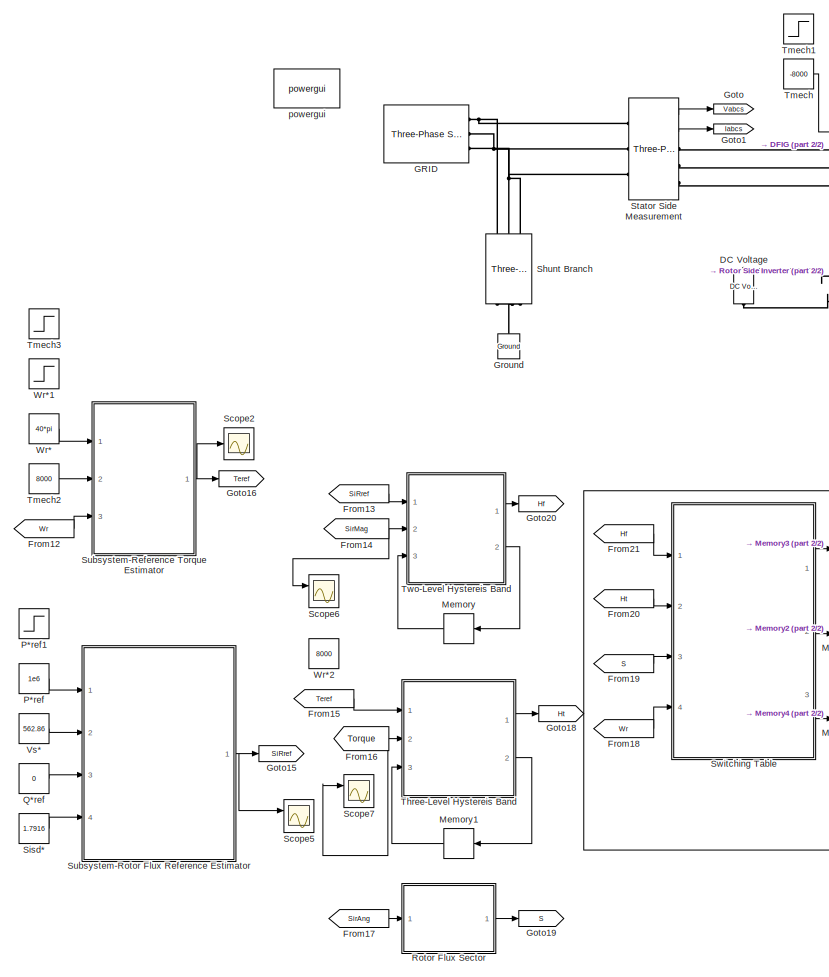
[diagram: root canvas - part 1/2, left side, full height]
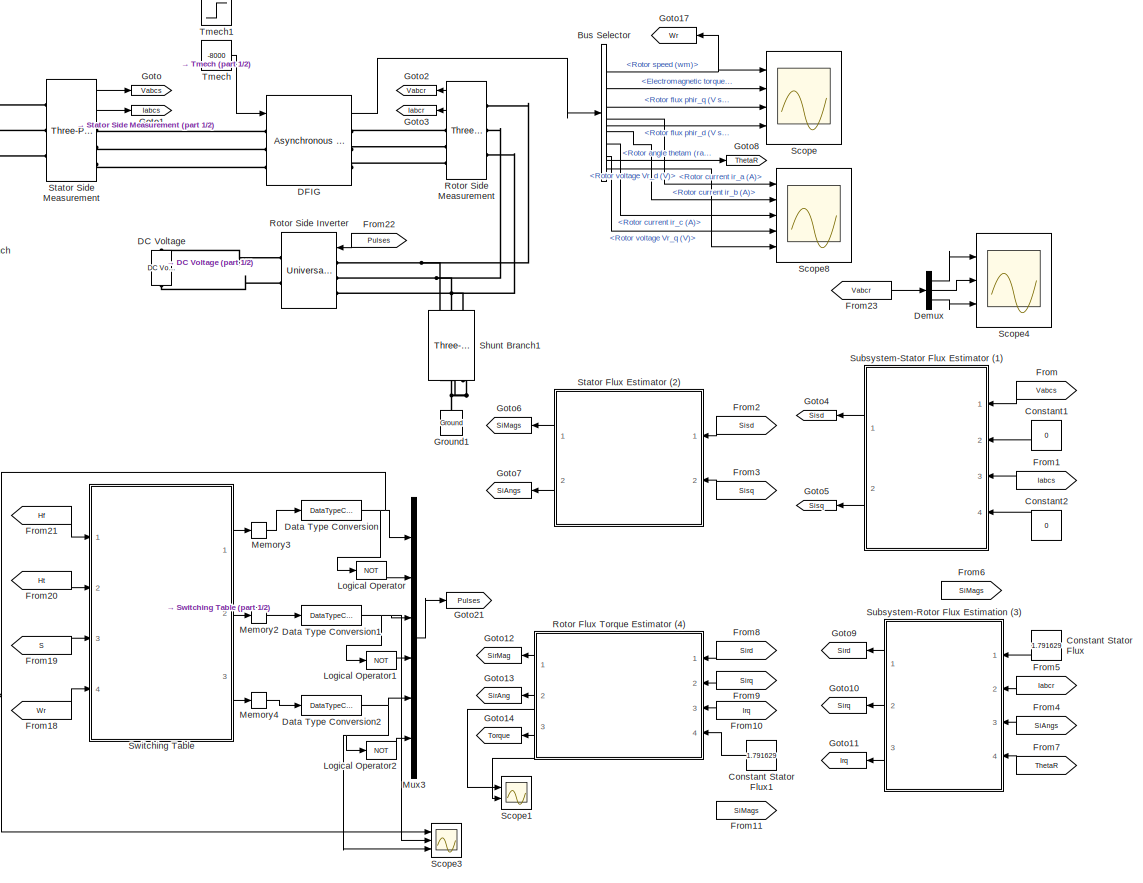
[diagram: root canvas - part 2/2, right side, full height]
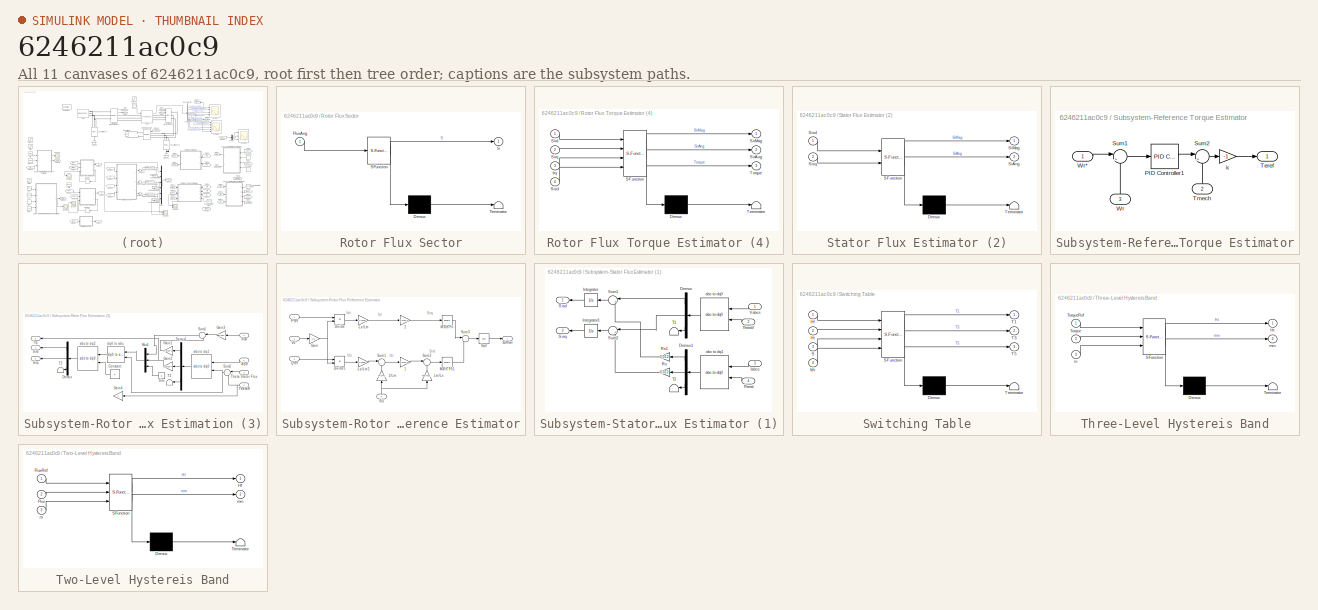
[diagram: thumbnail index - all 11 canvases of the model, root first then tree order]
MODEL slx_6246211ac0c9
KIND model
BLOCK [BusSelector] Bus Selector
  OutputSignals = Mechanical.Rotor speed (wm),Mechanical.Electromagnetic torque Te (N*m),Rotor measurements.Rotor flux phir_q (V s),Rotor measurements.Rotor flux phir_d (V s),Mechanical.Rotor angle thetam (rad),Rotor measurements.Rotor current ir_a (A),Rotor measurements.Rotor current ir_b (A),Rotor measurements.Rotor current ir_c (A),Rotor measurements.Rotor voltage Vr_q (V),Rotor measurements.Rotor voltage Vr_d (...<+2ch>
  Ports = [1, 10]
BLOCK [Constant] Constant Stator Flux
  Value = 1.791629
BLOCK [Constant] Constant Stator Flux1
  Value = 1.791629
BLOCK [Constant] Constant1
  Value = 0
BLOCK [Constant] Constant2
  Value = 0
BLOCK [Reference] DC Voltage  REF=powerlib/Electrical
Sources/DC Voltage Source
  Amplitude = 1200
  Measurements = None
  Ports = [0, 0, 0, 0, 0, 1, 1]
  SourceBlock = powerlib/Electrical\nSources/DC Voltage Source
  SourceType = DC Voltage Source
BLOCK [Reference] DFIG  REF=powerlib/Machines/Asynchronous Machine
SI Units
  AttributesFormatString = \n
  Cage1 = [ 0.022 0.226/377]
  Cage2 = [ 0.022 0.226/377]
  InitialConditions = [1 0 0 0 0 0 0 0]
  IterativeModel = Trapezoidal non iterative
  Lm = 0.0135
  LoadFlowParameters = 1492000
  MeasurementBus = off
  Mechanical = [1000 30 2]
  MechanicalLoad = Torque Tm
  NominalParameters = [1.5e+06 690 50]
  Pmec = 0
  PolePairs = 2
  Ports = [1, 1, 0, 0, 0, 3, 3]
  PresetModel = No
  ReferenceFrame = Rotor
  Rotor = [0.021 0.0136]
  RotorType = Wound
  Saturation = [14.03593122, 27.81365428, 53.79336849, 72.68890987, 97.98006896, 148.6815601, 215.7428561, 302.9841135, 420.4778367 ; 230, 322, 414, 460, 506, 552, 598, 644, 690]
  ShowDetailedParameters = on
  SimulateSaturation = off
  SourceBlock = powerlib/Machines/Asynchronous Machine\nSI Units
  SourceType = Asynchronous Machine
  Stator = [0.012 0.0137]
  TsBlock = -1
  TsPowergui = 0
  Units = SI
BLOCK [DataTypeConversion] Data Type Conversion
  OutDataTypeStr = boolean
  RndMeth = Floor
  SaturateOnIntegerOverflow = off
BLOCK [DataTypeConversion] Data Type Conversion1
  OutDataTypeStr = boolean
  RndMeth = Floor
  SaturateOnIntegerOverflow = off
BLOCK [DataTypeConversion] Data Type Conversion2
  OutDataTypeStr = boolean
  RndMeth = Floor
  SaturateOnIntegerOverflow = off
BLOCK [Demux] Demux
  DisplayOption = bar
  Outputs = 3
  Ports = [1, 3]
BLOCK [From] From
  GotoTag = Vabcs
  TagVisibility = global
BLOCK [From] From1
  GotoTag = Iabcs
  TagVisibility = global
BLOCK [From] From10
  GotoTag = Irq
  TagVisibility = global
BLOCK [From] From11
  GotoTag = SiMags
  TagVisibility = global
BLOCK [From] From12
  GotoTag = Wr
  TagVisibility = global
BLOCK [From] From13
  GotoTag = SiRref
  TagVisibility = global
BLOCK [From] From14
  GotoTag = SirMag
  TagVisibility = global
BLOCK [From] From15
  GotoTag = Teref
  TagVisibility = global
BLOCK [From] From16
  GotoTag = Torque
  TagVisibility = global
BLOCK [From] From17
  GotoTag = SirAng
  TagVisibility = global
BLOCK [From] From18
  GotoTag = Wr
  TagVisibility = global
BLOCK [From] From19
  GotoTag = S
  TagVisibility = global
BLOCK [From] From2
  GotoTag = Sisd
  TagVisibility = global
BLOCK [From] From20
  GotoTag = Ht
  TagVisibility = global
BLOCK [From] From21
  GotoTag = Hf
  TagVisibility = global
BLOCK [From] From22
  GotoTag = Pulses
  TagVisibility = global
BLOCK [From] From23
  GotoTag = Vabcr
  TagVisibility = global
BLOCK [From] From3
  GotoTag = Sisq
  TagVisibility = global
BLOCK [From] From4
  GotoTag = SiAngs
  TagVisibility = global
BLOCK [From] From5
  GotoTag = Iabcr
  TagVisibility = global
BLOCK [From] From6
  GotoTag = SiMags
  TagVisibility = global
BLOCK [From] From7
  GotoTag = ThetaR
  TagVisibility = global
BLOCK [From] From8
  GotoTag = Sird
  TagVisibility = global
BLOCK [From] From9
  GotoTag = Sirq
  TagVisibility = global
BLOCK [Reference] GRID  REF=powerlib/Electrical
Sources/Three-Phase Source
  BaseVoltage = 398
  BusType = swing
  Frequency = 50
  Inductance = 0
  InternalConnection = Yg
  PhaseAngle = 0
  Ports = [0, 0, 0, 0, 0, 0, 3]
  Pref = 0
  Qmax = inf
  Qmin = -inf
  Qref = 0
  Resistance = 0
  ShortCircuitLevel = 100e6
  SourceBlock = powerlib/Electrical\nSources/Three-Phase Source
  SourceType = Three-Phase Source
  SpecifyImpedance = off
  Voltage = 25e3
  XRratio = 7
BLOCK [Goto] Goto
  GotoTag = Vabcs
  TagVisibility = global
BLOCK [Goto] Goto1
  GotoTag = Iabcs
  TagVisibility = global
BLOCK [Goto] Goto10
  GotoTag = Sirq
  TagVisibility = global
BLOCK [Goto] Goto11
  GotoTag = Irq
  TagVisibility = global
BLOCK [Goto] Goto12
  GotoTag = SirMag
  TagVisibility = global
BLOCK [Goto] Goto13
  GotoTag = SirAng
  TagVisibility = global
BLOCK [Goto] Goto14
  GotoTag = Torque
  TagVisibility = global
BLOCK [Goto] Goto15
  GotoTag = SiRref
  TagVisibility = global
BLOCK [Goto] Goto16
  GotoTag = Teref
  TagVisibility = global
BLOCK [Goto] Goto17
  GotoTag = Wr
  TagVisibility = global
BLOCK [Goto] Goto18
  GotoTag = Ht
  TagVisibility = global
BLOCK [Goto] Goto19
  GotoTag = S
  TagVisibility = global
BLOCK [Goto] Goto2
  GotoTag = Vabcr
  TagVisibility = global
BLOCK [Goto] Goto20
  GotoTag = Hf
  TagVisibility = global
BLOCK [Goto] Goto21
  GotoTag = Pulses
  TagVisibility = global
BLOCK [Goto] Goto3
  GotoTag = Iabcr
  TagVisibility = global
BLOCK [Goto] Goto4
  GotoTag = Sisd
  TagVisibility = global
BLOCK [Goto] Goto5
  GotoTag = Sisq
  TagVisibility = global
BLOCK [Goto] Goto6
  GotoTag = SiMags
  TagVisibility = global
BLOCK [Goto] Goto7
  GotoTag = SiAngs
  TagVisibility = global
BLOCK [Goto] Goto8
  GotoTag = ThetaR
  TagVisibility = global
BLOCK [Goto] Goto9
  GotoTag = Sird
  TagVisibility = global
BLOCK [Reference] Ground  REF=powerlib/Elements/Ground
  LConnTagsString = a
  Ports = [0, 0, 0, 0, 0, 1]
  SourceBlock = powerlib/Elements/Ground
  SourceType = Ground
BLOCK [Reference] Ground1  REF=powerlib/Elements/Ground
  LConnTagsString = a
  Ports = [0, 0, 0, 0, 0, 1]
  SourceBlock = powerlib/Elements/Ground
  SourceType = Ground
BLOCK [Logic] Logical Operator
  AllPortsSameDT = off
  Operator = NOT
  OutDataTypeStr = boolean
  Ports = [1, 1]
BLOCK [Logic] Logical Operator1
  AllPortsSameDT = off
  Operator = NOT
  OutDataTypeStr = boolean
  Ports = [1, 1]
BLOCK [Logic] Logical Operator2
  AllPortsSameDT = off
  Operator = NOT
  OutDataTypeStr = boolean
  Ports = [1, 1]
BLOCK [Memory] Memory
  X0 = 1
BLOCK [Memory] Memory1
  X0 = 1
BLOCK [Memory] Memory2
  X0 = 1
BLOCK [Memory] Memory3
BLOCK [Memory] Memory4
BLOCK [Mux] Mux3
  DisplayOption = bar
  Inputs = 6
  Ports = [6, 1]
BLOCK [Constant] P*ref
  Value = 1e6
BLOCK [Step] P*ref1
  After = 1e6
  SampleTime = 0
  Time = 0.5
BLOCK [Constant] Q*ref
  Value = 0
BLOCK [SubSystem] Rotor Flux Sector
  ErrorFcn = Stateflow.Translate.translate
  PermitHierarchicalResolution = ExplicitOnly
  Ports = [1, 1]
  RequestExecContextInheritance = off
  SFBlockType = MATLAB Function
  TreatAsAtomicUnit = on
BLOCK [Demux] Rotor Flux Sector/ Demux 
  Outputs = 1
  Ports = [1, 1]
BLOCK [S-Function] Rotor Flux Sector/ SFunction 
  EnableBusSupport = on
  FunctionName = sf_sfun
  PortCounts = [1 2]
  Ports = [1, 2]
  Tag = Stateflow S-Function DFIG_DTC 5
BLOCK [Terminator] Rotor Flux Sector/ Terminator 
BLOCK [Inport] Rotor Flux Sector/FluxAng
  IconDisplay = Port number
BLOCK [Outport] Rotor Flux Sector/S
  IconDisplay = Port number
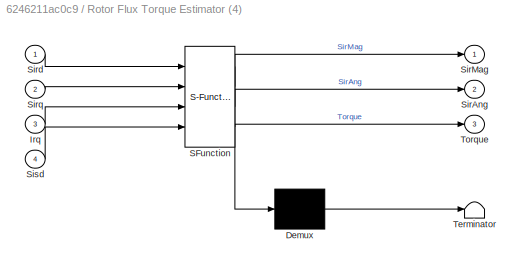
BLOCK [SubSystem] Rotor Flux Torque Estimator (4)
  ErrorFcn = Stateflow.Translate.translate
  PermitHierarchicalResolution = ExplicitOnly
  Ports = [4, 3]
  RequestExecContextInheritance = off
  SFBlockType = MATLAB Function
  TreatAsAtomicUnit = on
BLOCK [Demux] Rotor Flux Torque Estimator (4)/ Demux 
  Outputs = 1
  Ports = [1, 1]
BLOCK [S-Function] Rotor Flux Torque Estimator (4)/ SFunction 
  EnableBusSupport = on
  FunctionName = sf_sfun
  PortCounts = [4 4]
  Ports = [4, 4]
  Tag = Stateflow S-Function DFIG_DTC 2
BLOCK [Terminator] Rotor Flux Torque Estimator (4)/ Terminator 
BLOCK [Inport] Rotor Flux Torque Estimator (4)/Irq
  IconDisplay = Port number
  Port = 3
BLOCK [Outport] Rotor Flux Torque Estimator (4)/SirAng
  IconDisplay = Port number
  Port = 2
BLOCK [Outport] Rotor Flux Torque Estimator (4)/SirMag
  IconDisplay = Port number
BLOCK [Inport] Rotor Flux Torque Estimator (4)/Sird
  IconDisplay = Port number
BLOCK [Inport] Rotor Flux Torque Estimator (4)/Sirq
  IconDisplay = Port number
  Port = 2
BLOCK [Inport] Rotor Flux Torque Estimator (4)/Sisd
  IconDisplay = Port number
  Port = 4
BLOCK [Outport] Rotor Flux Torque Estimator (4)/Torque
  IconDisplay = Port number
  Port = 3
BLOCK [Reference] Rotor Side Inverter  REF=powerlib/Power
Electronics/Universal Bridge
  Arms = 3
  Device = IGBT / Diodes
  ForwardVoltage = 0
  ForwardVoltages = [  0  0  ]
  GTOparameters = [ 10e-6 , 20e-6 ]
  IGBTparameters = [ 1e-6 , 2e-6 ]
  Lon = 0
  Measurements = None
  Measurements_2 = None
  Ports = [1, 0, 0, 0, 0, 3, 2]
  Ron = 1e-3
  SnubberCapacitance = inf
  SnubberResistance = 1e5
  SourceBlock = powerlib/Power\nElectronics/Universal Bridge
  SourceType = Universal Bridge
  converterType = Rectifier
BLOCK [Reference] Rotor Side Measurement  REF=powerlib/Measurements/Three-Phase
V-I Measurement
  CurrentMeasurement = yes
  Ipu = off
  LabelI = Iabc
  LabelV = Vabc
  OutputType = Complex
  PSBequivalent = 0
  Pbase = 100e6
  PhasorSimulation = off
  Ports = [0, 2, 0, 0, 0, 3, 3]
  SetLabelI = off
  SetLabelV = off
  SourceBlock = powerlib/Measurements/Three-Phase\nV-I Measurement
  SourceType = Three-Phase VI Measurement
  Vbase = 500e3
  VoltageMeasurement = phase-to-ground
  Vpu = off
  VpuLL = off
BLOCK [Scope] Scope
  DataFormat = StructureWithTime
  Floating = off
  LimitDataPoints = off
  NumInputPorts = 4
  Ports = [4]
  SampleTime = 0
  ShowLegends = off
  YMax = 5~5~5~5
  YMin = -5~-5~-5~-5
  ZoomMode = xonly
BLOCK [Scope] Scope1
  DataFormat = StructureWithTime
  Floating = off
  LimitDataPoints = off
  NumInputPorts = 2
  Ports = [2]
  SampleTime = 0
  SaveName = ScopeData1
  ShowLegends = off
  YMax = 5~5
  YMin = -5~-5
  ZoomMode = xonly
BLOCK [Scope] Scope2
  DataFormat = StructureWithTime
  Floating = off
  LimitDataPoints = off
  NumInputPorts = 1
  Ports = [1]
  SampleTime = 0
  SaveName = ScopeData2
  ShowLegends = off
  ZoomMode = xonly
BLOCK [Scope] Scope3
  DataFormat = StructureWithTime
  Floating = off
  LimitDataPoints = off
  NumInputPorts = 3
  Ports = [3]
  SampleTime = 0
  SaveName = ScopeData3
  ShowLegends = off
  YMax = 5~5~5
  YMin = -5~-5~-5
  ZoomMode = xonly
BLOCK [Scope] Scope4
  DataFormat = StructureWithTime
  Floating = off
  LimitDataPoints = off
  NumInputPorts = 3
  Ports = [3]
  SampleTime = 0
  SaveName = ScopeData4
  ShowLegends = off
  YMax = 5~5~5
  YMin = -5~-5~-5
  ZoomMode = xonly
BLOCK [Scope] Scope5
  DataFormat = StructureWithTime
  Floating = off
  LimitDataPoints = off
  NumInputPorts = 2
  Ports = [2]
  SampleTime = 0
  SaveName = ScopeData5
  ShowLegends = off
  YMax = 5~5
  YMin = -5~-5
  ZoomMode = yonly
BLOCK [Scope] Scope6
  DataFormat = StructureWithTime
  Floating = off
  LimitDataPoints = off
  NumInputPorts = 2
  Ports = [2]
  SampleTime = 0
  SaveName = ScopeData6
  ShowLegends = off
  YMax = 5~5
  YMin = -5~-5
  ZoomMode = yonly
BLOCK [Scope] Scope7
  DataFormat = StructureWithTime
  Floating = off
  LimitDataPoints = off
  NumInputPorts = 2
  Ports = [2]
  SampleTime = 0
  SaveName = ScopeData7
  ShowLegends = off
  YMax = 5~5
  YMin = -5~-5
  ZoomMode = yonly
BLOCK [Scope] Scope8
  DataFormat = StructureWithTime
  Floating = off
  LimitDataPoints = off
  NumInputPorts = 5
  Ports = [5]
  SampleTime = 0
  SaveName = ScopeData8
  ShowLegends = off
  YMax = 5~5~5~5~5
  YMin = -5~-5~-5~-5~-5
  ZoomMode = xonly
BLOCK [Reference] Shunt Branch  REF=powerlib/Elements/Three-Phase
Series RLC Branch
  AttributesFormatString = \n
  BranchType = R
  Capacitance = 1e-6
  Inductance = 1e-3
  LConnTagsString = A|B|C
  Measurements = None
  Ports = [0, 0, 0, 0, 0, 3, 3]
  RConnTagsString = A|B|C
  Resistance = 1000
  SourceBlock = powerlib/Elements/Three-Phase\nSeries RLC Branch
  SourceType = Three-Phase Series RLC Branch
BLOCK [Reference] Shunt Branch1  REF=powerlib/Elements/Three-Phase
Series RLC Branch
  AttributesFormatString = \n
  BranchType = R
  Capacitance = 1e-6
  Inductance = 1e-3
  LConnTagsString = A|B|C
  Measurements = None
  Ports = [0, 0, 0, 0, 0, 3, 3]
  RConnTagsString = A|B|C
  Resistance = 10
  SourceBlock = powerlib/Elements/Three-Phase\nSeries RLC Branch
  SourceType = Three-Phase Series RLC Branch
BLOCK [Constant] Sisd*
  Value = 1.7916
BLOCK [SubSystem] Stator Flux Estimator (2)
  ErrorFcn = Stateflow.Translate.translate
  PermitHierarchicalResolution = ExplicitOnly
  Ports = [2, 2]
  RequestExecContextInheritance = off
  SFBlockType = MATLAB Function
  TreatAsAtomicUnit = on
BLOCK [Demux] Stator Flux Estimator (2)/ Demux 
  Outputs = 1
  Ports = [1, 1]
BLOCK [S-Function] Stator Flux Estimator (2)/ SFunction 
  EnableBusSupport = on
  FunctionName = sf_sfun
  PortCounts = [2 3]
  Ports = [2, 3]
  Tag = Stateflow S-Function DFIG_DTC 3
BLOCK [Terminator] Stator Flux Estimator (2)/ Terminator 
BLOCK [Outport] Stator Flux Estimator (2)/SiAng
  IconDisplay = Port number
  Port = 2
BLOCK [Outport] Stator Flux Estimator (2)/SiMag
  IconDisplay = Port number
BLOCK [Inport] Stator Flux Estimator (2)/Sisd
  IconDisplay = Port number
BLOCK [Inport] Stator Flux Estimator (2)/Sisq
  IconDisplay = Port number
  Port = 2
BLOCK [Reference] Stator Side Measurement  REF=powerlib/Measurements/Three-Phase
V-I Measurement
  CurrentMeasurement = yes
  Ipu = off
  LabelI = Iabc
  LabelV = Vabc
  OutputType = Complex
  PSBequivalent = 0
  Pbase = 100e6
  PhasorSimulation = off
  Ports = [0, 2, 0, 0, 0, 3, 3]
  SetLabelI = off
  SetLabelV = off
  SourceBlock = powerlib/Measurements/Three-Phase\nV-I Measurement
  SourceType = Three-Phase VI Measurement
  Vbase = 500e3
  VoltageMeasurement = phase-to-ground
  Vpu = off
  VpuLL = off
BLOCK [SubSystem] Subsystem-Reference Torque Estimator
  Ports = [3, 1]
  RequestExecContextInheritance = off
BLOCK [Reference] Subsystem-Reference Torque Estimator/PID Controller1  REF=simulink/Continuous/PID Controller
  AntiWindupMode = none
  Controller = PI
  D = 0
  DOutDataTypeStr = Inherit: Inherit via internal rule
  DOutMax = []
  DOutMin = []
  DParamDataTypeStr = Inherit: Inherit via internal rule
  DParamMax = []
  DParamMin = []
  ExternalReset = none
  FilterContinuousStateAttributes = ''
  FilterMethod = Forward Euler
  FilterOutDataTypeStr = Inherit: Inherit via internal rule
  FilterOutMax = []
  FilterOutMin = []
  FilterRTWStateStorageClass = Auto
  FilterStateMustResolveToSignalObject = off
  Form = Parallel
  I = 55.6628456867696
  IOutDataTypeStr = Inherit: Inherit via internal rule
  IOutMax = []
  IOutMin = []
  IParamDataTypeStr = Inherit: Inherit via internal rule
  IParamMax = []
  IParamMin = []
  IgnoreLimit = off
  InitialConditionForFilter = 0
  InitialConditionForIntegrator = 0
  InitialConditionSource = internal
  IntegratorContinuousStateAttributes = ''
  IntegratorMethod = Forward Euler
  IntegratorOutDataTypeStr = Inherit: Inherit via internal rule
  IntegratorOutMax = []
  IntegratorOutMin = []
  IntegratorRTWStateStorageClass = Auto
  IntegratorStateMustResolveToSignalObject = off
  Kb = 1
  KbOutDataTypeStr = Inherit: Inherit via internal rule
  KbOutMax = []
  KbOutMin = []
  KbParamDataTypeStr = Inherit: Inherit via internal rule
  KbParamMax = []
  KbParamMin = []
  Kt = 1
  KtOutDataTypeStr = Inherit: Inherit via internal rule
  KtOutMax = []
  KtOutMin = []
  KtParamDataTypeStr = Inherit: Inherit via internal rule
  KtParamMax = []
  KtParamMin = []
  LimitOutput = off
  LinearizeAsGain = on
  LockScale = off
  LowerSaturationLimit = -inf
  N = 100
  NOutDataTypeStr = Inherit: Inherit via internal rule
  NOutMax = []
  NOutMin = []
  NParamDataTypeStr = Inherit: Inherit via internal rule
  NParamMax = []
  NParamMin = []
  P = 273.240186106265
  POutDataTypeStr = Inherit: Inherit via internal rule
  POutMax = []
  POutMin = []
  PParamDataTypeStr = Inherit: Inherit via internal rule
  PParamMax = []
  PParamMin = []
  Ports = [1, 1]
  RndMeth = Floor
  SampleTime = 1
  SaturateOnIntegerOverflow = off
  SaturationOutDataTypeStr = Inherit: Same as input
  SaturationOutMax = []
  SaturationOutMin = []
  SourceBlock = simulink/Continuous/PID Controller
  SourceType = PID 1dof
  SumAccumDataTypeStr = Inherit: Inherit via internal rule
  SumDAccumDataTypeStr = Inherit: Inherit via internal rule
  SumDOutDataTypeStr = Inherit: Inherit via internal rule
  SumDOutMax = []
  SumDOutMin = []
  SumI1AccumDataTypeStr = Inherit: Inherit via internal rule
  SumI1OutDataTypeStr = Inherit: Inherit via internal rule
  SumI1OutMax = []
  SumI1OutMin = []
  SumI2AccumDataTypeStr = Inherit: Inherit via internal rule
  SumI2OutDataTypeStr = Inherit: Inherit via internal rule
  SumI2OutMax = []
  SumI2OutMin = []
  SumI3AccumDataTypeStr = Inherit: Inherit via internal rule
  SumI3OutDataTypeStr = Inherit: Inherit via internal rule
  SumI3OutMax = []
  SumI3OutMin = []
  SumOutDataTypeStr = Inherit: Inherit via internal rule
  SumOutMax = []
  SumOutMin = []
  TimeDomain = Continuous-time
  TrackingMode = off
  UpperSaturationLimit = inf
  ZeroCross = on
BLOCK [Sum] Subsystem-Reference Torque Estimator/Sum1
  IconShape = round
  InputSameDT = off
  Inputs = |+-
  OutDataTypeStr = Inherit: Inherit via internal rule
  Ports = [2, 1]
  SaturateOnIntegerOverflow = off
BLOCK [Sum] Subsystem-Reference Torque Estimator/Sum2
  IconShape = round
  InputSameDT = off
  Inputs = |+-
  OutDataTypeStr = Inherit: Inherit via internal rule
  Ports = [2, 1]
  SaturateOnIntegerOverflow = off
BLOCK [Outport] Subsystem-Reference Torque Estimator/Teref
  IconDisplay = Port number
BLOCK [Inport] Subsystem-Reference Torque Estimator/Tmech
  IconDisplay = Port number
  Port = 2
BLOCK [Inport] Subsystem-Reference Torque Estimator/Wr
  IconDisplay = Port number
  Port = 3
BLOCK [Inport] Subsystem-Reference Torque Estimator/Wr*
  IconDisplay = Port number
BLOCK [Gain] Subsystem-Reference Torque Estimator/k
  Gain = -1
  OutDataTypeStr = Inherit: Inherit via internal rule
  ParamDataTypeStr = Inherit: Inherit via internal rule
  SaturateOnIntegerOverflow = off
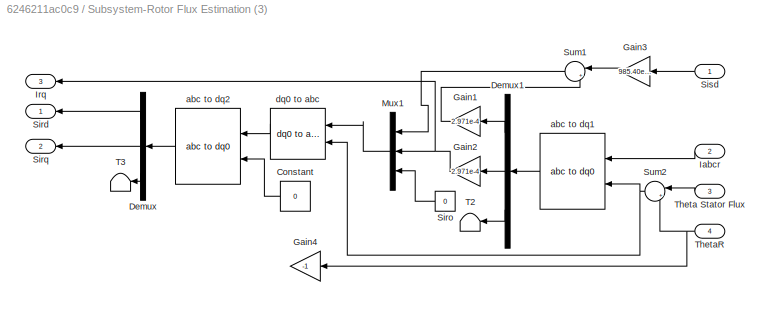
BLOCK [SubSystem] Subsystem-Rotor Flux Estimation (3)
  Ports = [4, 3]
  RequestExecContextInheritance = off
BLOCK [Constant] Subsystem-Rotor Flux Estimation (3)/Constant
  Value = 0
BLOCK [Demux] Subsystem-Rotor Flux Estimation (3)/Demux
  DisplayOption = bar
  Outputs = 3
  Ports = [1, 3]
BLOCK [Demux] Subsystem-Rotor Flux Estimation (3)/Demux1
  DisplayOption = bar
  Outputs = 3
  Ports = [1, 3]
BLOCK [Gain] Subsystem-Rotor Flux Estimation (3)/Gain1
  Gain = 2.971e-4
  OutDataTypeStr = Inherit: Inherit via internal rule
  ParamDataTypeStr = Inherit: Inherit via internal rule
  SaturateOnIntegerOverflow = off
BLOCK [Gain] Subsystem-Rotor Flux Estimation (3)/Gain2
  Gain = 2.971e-4
  OutDataTypeStr = Inherit: Inherit via internal rule
  ParamDataTypeStr = Inherit: Inherit via internal rule
  SaturateOnIntegerOverflow = off
BLOCK [Gain] Subsystem-Rotor Flux Estimation (3)/Gain3
  Gain = 985.40e-3
  OutDataTypeStr = Inherit: Inherit via internal rule
  ParamDataTypeStr = Inherit: Inherit via internal rule
  SaturateOnIntegerOverflow = off
BLOCK [Gain] Subsystem-Rotor Flux Estimation (3)/Gain4
  Gain = -1
  OutDataTypeStr = Inherit: Inherit via internal rule
  ParamDataTypeStr = Inherit: Inherit via internal rule
  SaturateOnIntegerOverflow = off
BLOCK [Inport] Subsystem-Rotor Flux Estimation (3)/Iabcr
  IconDisplay = Port number
  Port = 2
BLOCK [Outport] Subsystem-Rotor Flux Estimation (3)/Irq
  IconDisplay = Port number
  Port = 3
BLOCK [Mux] Subsystem-Rotor Flux Estimation (3)/Mux1
  DisplayOption = bar
  Inputs = 3
  Ports = [3, 1]
BLOCK [Outport] Subsystem-Rotor Flux Estimation (3)/Sird
  IconDisplay = Port number
BLOCK [Constant] Subsystem-Rotor Flux Estimation (3)/Siro
  Value = 0
BLOCK [Outport] Subsystem-Rotor Flux Estimation (3)/Sirq
  IconDisplay = Port number
  Port = 2
BLOCK [Inport] Subsystem-Rotor Flux Estimation (3)/Sisd
  IconDisplay = Port number
BLOCK [Sum] Subsystem-Rotor Flux Estimation (3)/Sum1
  IconShape = round
  InputSameDT = off
  Inputs = |++
  OutDataTypeStr = Inherit: Inherit via internal rule
  Ports = [2, 1]
  SaturateOnIntegerOverflow = off
BLOCK [Sum] Subsystem-Rotor Flux Estimation (3)/Sum2
  IconShape = round
  InputSameDT = off
  Inputs = |+-
  OutDataTypeStr = Inherit: Inherit via internal rule
  Ports = [2, 1]
  SaturateOnIntegerOverflow = off
BLOCK [Terminator] Subsystem-Rotor Flux Estimation (3)/T2
BLOCK [Terminator] Subsystem-Rotor Flux Estimation (3)/T3
BLOCK [Inport] Subsystem-Rotor Flux Estimation (3)/Theta Stator Flux
  IconDisplay = Port number
  Port = 3
BLOCK [Inport] Subsystem-Rotor Flux Estimation (3)/ThetaR
  IconDisplay = Port number
  Port = 4
BLOCK [Reference] Subsystem-Rotor Flux Estimation (3)/abc to dq1  REF=powerlib_meascontrol/Transformations/abc to dq0
  Alignment = Aligned with phase A axis
  Ports = [2, 1]
  SourceBlock = powerlib_meascontrol/Transformations/abc to dq0
  SourceType = abc to dq0 Transformation
BLOCK [Reference] Subsystem-Rotor Flux Estimation (3)/abc to dq2  REF=powerlib_meascontrol/Transformations/abc to dq0
  Alignment = Aligned with phase A axis
  Ports = [2, 1]
  SourceBlock = powerlib_meascontrol/Transformations/abc to dq0
  SourceType = abc to dq0 Transformation
BLOCK [Reference] Subsystem-Rotor Flux Estimation (3)/dq0 to abc  REF=powerlib_meascontrol/Transformations/dq0 to abc
  Alignment = Aligned with phase A axis
  Ports = [2, 1]
  SourceBlock = powerlib_meascontrol/Transformations/dq0 to abc
  SourceType = dq0 to abc Transformation
BLOCK [SubSystem] Subsystem-Rotor Flux Reference Estimator
  Ports = [4, 1]
  RequestExecContextInheritance = off
BLOCK [Gain] Subsystem-Rotor Flux Reference Estimator/-Ls//Lm
  Gain = -1.0148
  OutDataTypeStr = Inherit: Inherit via internal rule
  ParamDataTypeStr = Inherit: Inherit via internal rule
  SaturateOnIntegerOverflow = off
BLOCK [Gain] Subsystem-Rotor Flux Reference Estimator/-Ls//Lm1
  Gain = -1.0148
  OutDataTypeStr = Inherit: Inherit via internal rule
  ParamDataTypeStr = Inherit: Inherit via internal rule
  SaturateOnIntegerOverflow = off
BLOCK [Gain] Subsystem-Rotor Flux Reference Estimator/1
  Gain = 2.971e-4
  OutDataTypeStr = Inherit: Inherit via internal rule
  ParamDataTypeStr = Inherit: Inherit via internal rule
  SaturateOnIntegerOverflow = off
BLOCK [Gain] Subsystem-Rotor Flux Reference Estimator/1//Lm
  Gain = 74.0741
  OutDataTypeStr = Inherit: Inherit via internal rule
  ParamDataTypeStr = Inherit: Inherit via internal rule
  SaturateOnIntegerOverflow = off
BLOCK [Gain] Subsystem-Rotor Flux Reference Estimator/2
  Gain = 2.971e-4
  OutDataTypeStr = Inherit: Inherit via internal rule
  ParamDataTypeStr = Inherit: Inherit via internal rule
  SaturateOnIntegerOverflow = off
BLOCK [Product] Subsystem-Rotor Flux Reference Estimator/Divide
  InputSameDT = off
  Inputs = */
  OutDataTypeStr = Inherit: Inherit via internal rule
  Ports = [2, 1]
  RndMeth = Floor
  SaturateOnIntegerOverflow = off
BLOCK [Product] Subsystem-Rotor Flux Reference Estimator/Divide1
  InputSameDT = off
  Inputs = */
  OutDataTypeStr = Inherit: Inherit via internal rule
  Ports = [2, 1]
  RndMeth = Floor
  SaturateOnIntegerOverflow = off
BLOCK [Gain] Subsystem-Rotor Flux Reference Estimator/Gain
  Gain = 1.5
  OutDataTypeStr = Inherit: Inherit via internal rule
  ParamDataTypeStr = Inherit: Inherit via internal rule
  SaturateOnIntegerOverflow = off
BLOCK [Gain] Subsystem-Rotor Flux Reference Estimator/Lm//Ls
  Gain = 985.401e-3
  OutDataTypeStr = Inherit: Inherit via internal rule
  ParamDataTypeStr = Inherit: Inherit via internal rule
  SaturateOnIntegerOverflow = off
BLOCK [Math] Subsystem-Rotor Flux Reference Estimator/Math Fn
  Operator = square
  Ports = [1, 1]
BLOCK [Math] Subsystem-Rotor Flux Reference Estimator/Math Fn1
  Operator = square
  Ports = [1, 1]
BLOCK [Inport] Subsystem-Rotor Flux Reference Estimator/P*ref
  IconDisplay = Port number
BLOCK [Inport] Subsystem-Rotor Flux Reference Estimator/Q*ref
  IconDisplay = Port number
  Port = 3
BLOCK [Outport] Subsystem-Rotor Flux Reference Estimator/SiR*ref
  IconDisplay = Port number
BLOCK [Inport] Subsystem-Rotor Flux Reference Estimator/Sis
  IconDisplay = Port number
  Port = 4
BLOCK [Sqrt] Subsystem-Rotor Flux Reference Estimator/Sqrt
BLOCK [Sum] Subsystem-Rotor Flux Reference Estimator/Sum1
  IconShape = round
  InputSameDT = off
  Inputs = |++
  OutDataTypeStr = Inherit: Inherit via internal rule
  Ports = [2, 1]
  SaturateOnIntegerOverflow = off
BLOCK [Sum] Subsystem-Rotor Flux Reference Estimator/Sum2
  IconShape = round
  InputSameDT = off
  Inputs = |++
  OutDataTypeStr = Inherit: Inherit via internal rule
  Ports = [2, 1]
  SaturateOnIntegerOverflow = off
BLOCK [Sum] Subsystem-Rotor Flux Reference Estimator/Sum3
  IconShape = round
  InputSameDT = off
  Inputs = |++
  OutDataTypeStr = Inherit: Inherit via internal rule
  Ports = [2, 1]
  SaturateOnIntegerOverflow = off
BLOCK [Inport] Subsystem-Rotor Flux Reference Estimator/Vs*
  IconDisplay = Port number
  Port = 2
BLOCK [SubSystem] Subsystem-Stator Flux Estimator (1)
  Ports = [4, 2]
  RequestExecContextInheritance = off
BLOCK [Demux] Subsystem-Stator Flux Estimator (1)/Demux
  DisplayOption = bar
  Outputs = 3
  Ports = [1, 3]
BLOCK [Demux] Subsystem-Stator Flux Estimator (1)/Demux1
  DisplayOption = bar
  Outputs = 3
  Ports = [1, 3]
BLOCK [Inport] Subsystem-Stator Flux Estimator (1)/Iabcs
  IconDisplay = Port number
  Port = 3
BLOCK [Integrator] Subsystem-Stator Flux Estimator (1)/Integrator
  Ports = [1, 1]
BLOCK [Integrator] Subsystem-Stator Flux Estimator (1)/Integrator1
  Ports = [1, 1]
BLOCK [Gain] Subsystem-Stator Flux Estimator (1)/Rs
  Gain = 0.012
  OutDataTypeStr = Inherit: Inherit via internal rule
  ParamDataTypeStr = Inherit: Inherit via internal rule
  SaturateOnIntegerOverflow = off
BLOCK [Gain] Subsystem-Stator Flux Estimator (1)/Rs1
  Gain = 0.012
  OutDataTypeStr = Inherit: Inherit via internal rule
  ParamDataTypeStr = Inherit: Inherit via internal rule
  SaturateOnIntegerOverflow = off
BLOCK [Outport] Subsystem-Stator Flux Estimator (1)/Sisd
  IconDisplay = Port number
BLOCK [Outport] Subsystem-Stator Flux Estimator (1)/Sisq
  IconDisplay = Port number
  Port = 2
BLOCK [Sum] Subsystem-Stator Flux Estimator (1)/Sum1
  IconShape = round
  InputSameDT = off
  Inputs = |+-
  OutDataTypeStr = Inherit: Inherit via internal rule
  Ports = [2, 1]
  SaturateOnIntegerOverflow = off
BLOCK [Sum] Subsystem-Stator Flux Estimator (1)/Sum2
  IconShape = round
  InputSameDT = off
  Inputs = |+-
  OutDataTypeStr = Inherit: Inherit via internal rule
  Ports = [2, 1]
  SaturateOnIntegerOverflow = off
BLOCK [Terminator] Subsystem-Stator Flux Estimator (1)/T1
BLOCK [Terminator] Subsystem-Stator Flux Estimator (1)/T2
BLOCK [Inport] Subsystem-Stator Flux Estimator (1)/ThetaI
  IconDisplay = Port number
  Port = 4
BLOCK [Inport] Subsystem-Stator Flux Estimator (1)/ThetaV
  IconDisplay = Port number
  Port = 2
BLOCK [Inport] Subsystem-Stator Flux Estimator (1)/Vabcs
  IconDisplay = Port number
BLOCK [Reference] Subsystem-Stator Flux Estimator (1)/abc to dq0  REF=powerlib_meascontrol/Transformations/abc to dq0
  Alignment = Aligned with phase A axis
  Ports = [2, 1]
  SourceBlock = powerlib_meascontrol/Transformations/abc to dq0
  SourceType = abc to dq0 Transformation
BLOCK [Reference] Subsystem-Stator Flux Estimator (1)/abc to dq1  REF=powerlib_meascontrol/Transformations/abc to dq0
  Alignment = Aligned with phase A axis
  Ports = [2, 1]
  SourceBlock = powerlib_meascontrol/Transformations/abc to dq0
  SourceType = abc to dq0 Transformation
BLOCK [SubSystem] Switching Table
  ErrorFcn = Stateflow.Translate.translate
  PermitHierarchicalResolution = ExplicitOnly
  Ports = [4, 3]
  RequestExecContextInheritance = off
  SFBlockType = MATLAB Function
  TreatAsAtomicUnit = on
BLOCK [Demux] Switching Table/ Demux 
  Outputs = 1
  Ports = [1, 1]
BLOCK [S-Function] Switching Table/ SFunction 
  EnableBusSupport = on
  FunctionName = sf_sfun
  PortCounts = [4 4]
  Ports = [4, 4]
  Tag = Stateflow S-Function DFIG_DTC 6
BLOCK [Terminator] Switching Table/ Terminator 
BLOCK [Inport] Switching Table/Hf
  IconDisplay = Port number
BLOCK [Inport] Switching Table/Ht
  IconDisplay = Port number
  Port = 2
BLOCK [Inport] Switching Table/S
  IconDisplay = Port number
  Port = 3
BLOCK [Outport] Switching Table/T1
  IconDisplay = Port number
BLOCK [Outport] Switching Table/T3
  IconDisplay = Port number
  Port = 2
BLOCK [Outport] Switching Table/T5
  IconDisplay = Port number
  Port = 3
BLOCK [Inport] Switching Table/Wr
  IconDisplay = Port number
  Port = 4
BLOCK [SubSystem] Three-Level Hystereis Band
  ErrorFcn = Stateflow.Translate.translate
  PermitHierarchicalResolution = ExplicitOnly
  Ports = [3, 2]
  RequestExecContextInheritance = off
  SFBlockType = MATLAB Function
  TreatAsAtomicUnit = on
BLOCK [Demux] Three-Level Hystereis Band/ Demux 
  Outputs = 1
  Ports = [1, 1]
BLOCK [S-Function] Three-Level Hystereis Band/ SFunction 
  EnableBusSupport = on
  FunctionName = sf_sfun
  PortCounts = [3 3]
  Ports = [3, 3]
  Tag = Stateflow S-Function DFIG_DTC 4
BLOCK [Terminator] Three-Level Hystereis Band/ Terminator 
BLOCK [Outport] Three-Level Hystereis Band/Ht
  IconDisplay = Port number
BLOCK [Inport] Three-Level Hystereis Band/Torque
  IconDisplay = Port number
  Port = 2
BLOCK [Inport] Three-Level Hystereis Band/TorqueRef
  IconDisplay = Port number
BLOCK [Inport] Three-Level Hystereis Band/m
  IconDisplay = Port number
  Port = 3
BLOCK [Outport] Three-Level Hystereis Band/mm
  IconDisplay = Port number
  Port = 2
BLOCK [Constant] Tmech
  Value = -8000
BLOCK [Step] Tmech1
  After = -8000
  SampleTime = 0
  Time = 0.5
BLOCK [Constant] Tmech2
  Value = 8000
BLOCK [Step] Tmech3
  After = 8000
  SampleTime = 0
  Time = 0.5
BLOCK [SubSystem] Two-Level Hystereis Band
  ErrorFcn = Stateflow.Translate.translate
  PermitHierarchicalResolution = ExplicitOnly
  Ports = [3, 2]
  RequestExecContextInheritance = off
  SFBlockType = MATLAB Function
  TreatAsAtomicUnit = on
BLOCK [Demux] Two-Level Hystereis Band/ Demux 
  Outputs = 1
  Ports = [1, 1]
BLOCK [S-Function] Two-Level Hystereis Band/ SFunction 
  EnableBusSupport = on
  FunctionName = sf_sfun
  PortCounts = [3 3]
  Ports = [3, 3]
  Tag = Stateflow S-Function DFIG_DTC 1
BLOCK [Terminator] Two-Level Hystereis Band/ Terminator 
BLOCK [Inport] Two-Level Hystereis Band/Flux
  IconDisplay = Port number
  Port = 2
BLOCK [Inport] Two-Level Hystereis Band/FluxRef
  IconDisplay = Port number
BLOCK [Outport] Two-Level Hystereis Band/Hf
  IconDisplay = Port number
BLOCK [Inport] Two-Level Hystereis Band/m
  IconDisplay = Port number
  Port = 3
BLOCK [Outport] Two-Level Hystereis Band/mm
  IconDisplay = Port number
  Port = 2
BLOCK [Constant] Vs*
  Value = 562.86
BLOCK [Constant] Wr*
  Value = 40*pi
BLOCK [Step] Wr*1
  After = 40*pi
  SampleTime = 0
  Time = 0.5
BLOCK [Constant] Wr*2
  Value = 8000
BLOCK [Reference] powergui  REF=powerlib/powergui
  DisableRonSwitches = off
  DisableSnubberDevices = off
  DisableVfSwitches = off
  DisplayEquations = off
  DisplayStyle = 1
  EnableUseOfTLC = off
  ErrMax = 1e-4
  Frange = [0:2:500]
  FreqAxis = off
  FunctionMessages = off
  HookPort = off
  Interpol = off
  Iterations = 50
  MaxFrequency = 1000
  Pbase = 100e6
  Ports = []
  Priority = 1
  ResistiveCurrentMeasurement = off
  RestoreLinks = warning
  RmsSteady = 1
  SPID = off
  SampleTime = 50e-6
  ShowGrid = off
  SolverType = Tustin
  SourceBlock = powerlib/powergui
  SourceType = PSB option menu block
  StartTime = 0.0
  SwTol = 0
  Ts = 0
  UnitsV = kV
  UnitsW = MW
  UserDataPersistent = on
  Xlog = on
  Ylog = off
  ZoomFFT = off
  cycles = 1
  display = off
  echomessages = off
  frequency = 60
  frequencyindice = 50
  frequencyindicesteady = 1
  fundamental = 60
  methode = off
  save = off
  structure = 0
  variable = ZData
  x0status = blocks
ANNOTATION Subsystem-Rotor Flux Reference Estimator: Idr
ANNOTATION Subsystem-Rotor Flux Reference Estimator: Ids
ANNOTATION Subsystem-Rotor Flux Reference Estimator: Iqr
ANNOTATION Subsystem-Rotor Flux Reference Estimator: Iqs
ANNOTATION Subsystem-Rotor Flux Reference Estimator: Sird
ANNOTATION Subsystem-Rotor Flux Reference Estimator: Sirq
NET Bus Selector:1 -> Goto17:1, Scope:1
LINE Bus Selector:10 -> Scope8:5
LINE Bus Selector:2 -> Scope:2
LINE Bus Selector:3 -> Scope:3
LINE Bus Selector:4 -> Scope:4
LINE Bus Selector:5 -> Goto8:1
LINE Bus Selector:6 -> Scope8:1
LINE Bus Selector:7 -> Scope8:2
LINE Bus Selector:8 -> Scope8:3
LINE Bus Selector:9 -> Scope8:4
LINE Constant Stator Flux1:1 -> Rotor Flux Torque Estimator (4):4
LINE Constant Stator Flux:1 -> Subsystem-Rotor Flux Estimation (3):1
LINE Constant1:1 -> Subsystem-Stator Flux Estimator (1):2
LINE Constant2:1 -> Subsystem-Stator Flux Estimator (1):4
LINE DFIG:1 -> Bus Selector:1
NET Data Type Conversion1:1 -> Logical Operator1:1, Mux3:3, Scope3:2
NET Data Type Conversion2:1 -> Logical Operator2:1, Mux3:5, Scope3:3
NET Data Type Conversion:1 -> Logical Operator:1, Mux3:1, Scope3:1
LINE Demux:1 -> Scope4:1
LINE Demux:2 -> Scope4:2
LINE Demux:3 -> Scope4:3
LINE From10:1 -> Rotor Flux Torque Estimator (4):3
LINE From12:1 -> Subsystem-Reference Torque Estimator:3
LINE From13:1 -> Two-Level Hystereis Band:1
NET From14:1 -> Scope6:1, Two-Level Hystereis Band:2
LINE From15:1 -> Three-Level Hystereis Band:1
NET From16:1 -> Scope7:1, Three-Level Hystereis Band:2
LINE From17:1 -> Rotor Flux Sector:1
LINE From18:1 -> Switching Table:4
LINE From19:1 -> Switching Table:3
LINE From1:1 -> Subsystem-Stator Flux Estimator (1):3
LINE From20:1 -> Switching Table:2
LINE From21:1 -> Switching Table:1
LINE From22:1 -> Rotor Side Inverter:1
LINE From23:1 -> Demux:1
LINE From2:1 -> Stator Flux Estimator (2):1
LINE From3:1 -> Stator Flux Estimator (2):2
LINE From4:1 -> Subsystem-Rotor Flux Estimation (3):3
LINE From5:1 -> Subsystem-Rotor Flux Estimation (3):2
LINE From7:1 -> Subsystem-Rotor Flux Estimation (3):4
LINE From8:1 -> Rotor Flux Torque Estimator (4):1
LINE From9:1 -> Rotor Flux Torque Estimator (4):2
LINE From:1 -> Subsystem-Stator Flux Estimator (1):1
LINE Logical Operator1:1 -> Mux3:4
LINE Logical Operator2:1 -> Mux3:6
LINE Logical Operator:1 -> Mux3:2
LINE Memory1:1 -> Three-Level Hystereis Band:3
LINE Memory2:1 -> Data Type Conversion1:1
LINE Memory3:1 -> Data Type Conversion:1
LINE Memory4:1 -> Data Type Conversion2:1
LINE Memory:1 -> Two-Level Hystereis Band:3
LINE Mux3:1 -> Goto21:1
LINE P*ref:1 -> Subsystem-Rotor Flux Reference Estimator:1
LINE Q*ref:1 -> Subsystem-Rotor Flux Reference Estimator:3
LINE Rotor Flux Sector:1 -> Goto19:1
LINE Rotor Flux Torque Estimator (4):1 -> Goto12:1
NET Rotor Flux Torque Estimator (4):2 -> Goto13:1, Scope1:1
NET Rotor Flux Torque Estimator (4):3 -> Goto14:1, Scope1:2
LINE Rotor Side Measurement:1 -> Goto2:1
LINE Rotor Side Measurement:2 -> Goto3:1
LINE Sisd*:1 -> Subsystem-Rotor Flux Reference Estimator:4
LINE Stator Flux Estimator (2):1 -> Goto6:1
LINE Stator Flux Estimator (2):2 -> Goto7:1
LINE Stator Side Measurement:1 -> Goto:1
LINE Stator Side Measurement:2 -> Goto1:1
LINE Subsystem-Reference Torque Estimator/PID Controller1:1 -> Subsystem-Reference Torque Estimator/Sum2:1
LINE Subsystem-Reference Torque Estimator/Sum1:1 -> Subsystem-Reference Torque Estimator/PID Controller1:1
LINE Subsystem-Reference Torque Estimator/Sum2:1 -> Subsystem-Reference Torque Estimator/k:1
LINE Subsystem-Reference Torque Estimator/Tmech:1 -> Subsystem-Reference Torque Estimator/Sum2:2
LINE Subsystem-Reference Torque Estimator/Wr*:1 -> Subsystem-Reference Torque Estimator/Sum1:1
LINE Subsystem-Reference Torque Estimator/Wr:1 -> Subsystem-Reference Torque Estimator/Sum1:2
LINE Subsystem-Reference Torque Estimator/k:1 -> Subsystem-Reference Torque Estimator/Teref:1
NET Subsystem-Reference Torque Estimator:1 -> Goto16:1, Scope2:1
LINE Subsystem-Rotor Flux Estimation (3)/Constant:1 -> Subsystem-Rotor Flux Estimation (3)/abc to dq2:2
LINE Subsystem-Rotor Flux Estimation (3)/Demux1:1 -> Subsystem-Rotor Flux Estimation (3)/Gain1:1
LINE Subsystem-Rotor Flux Estimation (3)/Demux1:2 -> Subsystem-Rotor Flux Estimation (3)/Gain2:1
LINE Subsystem-Rotor Flux Estimation (3)/Demux1:3 -> Subsystem-Rotor Flux Estimation (3)/T2:1
LINE Subsystem-Rotor Flux Estimation (3)/Demux:1 -> Subsystem-Rotor Flux Estimation (3)/Sird:1
LINE Subsystem-Rotor Flux Estimation (3)/Demux:2 -> Subsystem-Rotor Flux Estimation (3)/Sirq:1
LINE Subsystem-Rotor Flux Estimation (3)/Demux:3 -> Subsystem-Rotor Flux Estimation (3)/T3:1
LINE Subsystem-Rotor Flux Estimation (3)/Gain1:1 -> Subsystem-Rotor Flux Estimation (3)/Sum1:2
NET Subsystem-Rotor Flux Estimation (3)/Gain2:1 -> Subsystem-Rotor Flux Estimation (3)/Irq:1, Subsystem-Rotor Flux Estimation (3)/Mux1:2
LINE Subsystem-Rotor Flux Estimation (3)/Gain3:1 -> Subsystem-Rotor Flux Estimation (3)/Sum1:1
LINE Subsystem-Rotor Flux Estimation (3)/Iabcr:1 -> Subsystem-Rotor Flux Estimation (3)/abc to dq1:1
LINE Subsystem-Rotor Flux Estimation (3)/Mux1:1 -> Subsystem-Rotor Flux Estimation (3)/dq0 to abc:1
LINE Subsystem-Rotor Flux Estimation (3)/Siro:1 -> Subsystem-Rotor Flux Estimation (3)/Mux1:3
LINE Subsystem-Rotor Flux Estimation (3)/Sisd:1 -> Subsystem-Rotor Flux Estimation (3)/Gain3:1
LINE Subsystem-Rotor Flux Estimation (3)/Sum1:1 -> Subsystem-Rotor Flux Estimation (3)/Mux1:1
NET Subsystem-Rotor Flux Estimation (3)/Sum2:1 -> Subsystem-Rotor Flux Estimation (3)/abc to dq1:2, Subsystem-Rotor Flux Estimation (3)/dq0 to abc:2
LINE Subsystem-Rotor Flux Estimation (3)/Theta Stator Flux:1 -> Subsystem-Rotor Flux Estimation (3)/Sum2:1
NET Subsystem-Rotor Flux Estimation (3)/ThetaR:1 -> Subsystem-Rotor Flux Estimation (3)/Gain4:1, Subsystem-Rotor Flux Estimation (3)/Sum2:2
LINE Subsystem-Rotor Flux Estimation (3)/abc to dq1:1 -> Subsystem-Rotor Flux Estimation (3)/Demux1:1
LINE Subsystem-Rotor Flux Estimation (3)/abc to dq2:1 -> Subsystem-Rotor Flux Estimation (3)/Demux:1
LINE Subsystem-Rotor Flux Estimation (3)/dq0 to abc:1 -> Subsystem-Rotor Flux Estimation (3)/abc to dq2:1
LINE Subsystem-Rotor Flux Estimation (3):1 -> Goto9:1
LINE Subsystem-Rotor Flux Estimation (3):2 -> Goto10:1
LINE Subsystem-Rotor Flux Estimation (3):3 -> Goto11:1
LINE Subsystem-Rotor Flux Reference Estimator/-Ls//Lm1:1 -> Subsystem-Rotor Flux Reference Estimator/Sum1:1
LINE Subsystem-Rotor Flux Reference Estimator/-Ls//Lm:1 -> Subsystem-Rotor Flux Reference Estimator/2:1
LINE Subsystem-Rotor Flux Reference Estimator/1//Lm:1 -> Subsystem-Rotor Flux Reference Estimator/Sum1:2
LINE Subsystem-Rotor Flux Reference Estimator/1:1 -> Subsystem-Rotor Flux Reference Estimator/Sum2:1
LINE Subsystem-Rotor Flux Reference Estimator/2:1 -> Subsystem-Rotor Flux Reference Estimator/Math Fn:1
LINE Subsystem-Rotor Flux Reference Estimator/Divide1:1 -> Subsystem-Rotor Flux Reference Estimator/-Ls//Lm1:1
LINE Subsystem-Rotor Flux Reference Estimator/Divide:1 -> Subsystem-Rotor Flux Reference Estimator/-Ls//Lm:1
NET Subsystem-Rotor Flux Reference Estimator/Gain:1 -> Subsystem-Rotor Flux Reference Estimator/Divide1:2, Subsystem-Rotor Flux Reference Estimator/Divide:2
LINE Subsystem-Rotor Flux Reference Estimator/Lm//Ls:1 -> Subsystem-Rotor Flux Reference Estimator/Sum2:2
LINE Subsystem-Rotor Flux Reference Estimator/Math Fn1:1 -> Subsystem-Rotor Flux Reference Estimator/Sum3:2
LINE Subsystem-Rotor Flux Reference Estimator/Math Fn:1 -> Subsystem-Rotor Flux Reference Estimator/Sum3:1
LINE Subsystem-Rotor Flux Reference Estimator/P*ref:1 -> Subsystem-Rotor Flux Reference Estimator/Divide:1
LINE Subsystem-Rotor Flux Reference Estimator/Q*ref:1 -> Subsystem-Rotor Flux Reference Estimator/Divide1:1
NET Subsystem-Rotor Flux Reference Estimator/Sis:1 -> Subsystem-Rotor Flux Reference Estimator/1//Lm:1, Subsystem-Rotor Flux Reference Estimator/Lm//Ls:1
LINE Subsystem-Rotor Flux Reference Estimator/Sqrt:1 -> Subsystem-Rotor Flux Reference Estimator/SiR*ref:1
LINE Subsystem-Rotor Flux Reference Estimator/Sum1:1 -> Subsystem-Rotor Flux Reference Estimator/1:1
LINE Subsystem-Rotor Flux Reference Estimator/Sum2:1 -> Subsystem-Rotor Flux Reference Estimator/Math Fn1:1
LINE Subsystem-Rotor Flux Reference Estimator/Sum3:1 -> Subsystem-Rotor Flux Reference Estimator/Sqrt:1
LINE Subsystem-Rotor Flux Reference Estimator/Vs*:1 -> Subsystem-Rotor Flux Reference Estimator/Gain:1
NET Subsystem-Rotor Flux Reference Estimator:1 -> Goto15:1, Scope5:1
LINE Subsystem-Stator Flux Estimator (1)/Demux1:1 -> Subsystem-Stator Flux Estimator (1)/Rs1:1
LINE Subsystem-Stator Flux Estimator (1)/Demux1:2 -> Subsystem-Stator Flux Estimator (1)/Rs:1
LINE Subsystem-Stator Flux Estimator (1)/Demux1:3 -> Subsystem-Stator Flux Estimator (1)/T2:1
LINE Subsystem-Stator Flux Estimator (1)/Demux:1 -> Subsystem-Stator Flux Estimator (1)/Sum1:1
LINE Subsystem-Stator Flux Estimator (1)/Demux:2 -> Subsystem-Stator Flux Estimator (1)/Sum2:1
LINE Subsystem-Stator Flux Estimator (1)/Demux:3 -> Subsystem-Stator Flux Estimator (1)/T1:1
LINE Subsystem-Stator Flux Estimator (1)/Iabcs:1 -> Subsystem-Stator Flux Estimator (1)/abc to dq1:1
LINE Subsystem-Stator Flux Estimator (1)/Integrator1:1 -> Subsystem-Stator Flux Estimator (1)/Sisq:1
LINE Subsystem-Stator Flux Estimator (1)/Integrator:1 -> Subsystem-Stator Flux Estimator (1)/Sisd:1
LINE Subsystem-Stator Flux Estimator (1)/Rs1:1 -> Subsystem-Stator Flux Estimator (1)/Sum1:2
LINE Subsystem-Stator Flux Estimator (1)/Rs:1 -> Subsystem-Stator Flux Estimator (1)/Sum2:2
LINE Subsystem-Stator Flux Estimator (1)/Sum1:1 -> Subsystem-Stator Flux Estimator (1)/Integrator:1
LINE Subsystem-Stator Flux Estimator (1)/Sum2:1 -> Subsystem-Stator Flux Estimator (1)/Integrator1:1
LINE Subsystem-Stator Flux Estimator (1)/ThetaI:1 -> Subsystem-Stator Flux Estimator (1)/abc to dq1:2
LINE Subsystem-Stator Flux Estimator (1)/ThetaV:1 -> Subsystem-Stator Flux Estimator (1)/abc to dq0:2
LINE Subsystem-Stator Flux Estimator (1)/Vabcs:1 -> Subsystem-Stator Flux Estimator (1)/abc to dq0:1
LINE Subsystem-Stator Flux Estimator (1)/abc to dq0:1 -> Subsystem-Stator Flux Estimator (1)/Demux:1
LINE Subsystem-Stator Flux Estimator (1)/abc to dq1:1 -> Subsystem-Stator Flux Estimator (1)/Demux1:1
LINE Subsystem-Stator Flux Estimator (1):1 -> Goto4:1
LINE Subsystem-Stator Flux Estimator (1):2 -> Goto5:1
LINE Switching Table:1 -> Memory3:1
LINE Switching Table:2 -> Memory2:1
LINE Switching Table:3 -> Memory4:1
LINE Three-Level Hystereis Band:1 -> Goto18:1
LINE Three-Level Hystereis Band:2 -> Memory1:1
LINE Tmech2:1 -> Subsystem-Reference Torque Estimator:2
LINE Tmech:1 -> DFIG:1
LINE Two-Level Hystereis Band:1 -> Goto20:1
LINE Two-Level Hystereis Band:2 -> Memory:1
LINE Vs*:1 -> Subsystem-Rotor Flux Reference Estimator:2
LINE Wr*:1 -> Subsystem-Reference Torque Estimator:1
PLINE DC Voltage:LConn1 -- Rotor Side Inverter:RConn2
PLINE DC Voltage:RConn1 -- Rotor Side Inverter:RConn1
PLINE DFIG:LConn1 -- Stator Side Measurement:RConn1
PLINE DFIG:LConn2 -- Stator Side Measurement:RConn2
PLINE DFIG:LConn3 -- Stator Side Measurement:RConn3
PLINE DFIG:RConn1 -- Rotor Side Measurement:RConn1
PLINE DFIG:RConn2 -- Rotor Side Measurement:RConn2
PLINE DFIG:RConn3 -- Rotor Side Measurement:RConn3
PNET net1: GRID:RConn1 -- Shunt Branch:LConn1 -- Stator Side Measurement:LConn1
PNET net2: GRID:RConn2 -- Shunt Branch:LConn2 -- Stator Side Measurement:LConn2
PNET net3: GRID:RConn3 -- Shunt Branch:LConn3 -- Stator Side Measurement:LConn3
PNET net4: Ground1:LConn1 -- Shunt Branch1:RConn1 -- Shunt Branch1:RConn2 -- Shunt Branch1:RConn3
PNET net5: Ground:LConn1 -- Shunt Branch:RConn1 -- Shunt Branch:RConn2 -- Shunt Branch:RConn3
PNET net6: Rotor Side Inverter:LConn1 -- Rotor Side Measurement:LConn1 -- Shunt Branch1:LConn1
PNET net7: Rotor Side Inverter:LConn2 -- Rotor Side Measurement:LConn2 -- Shunt Branch1:LConn2
PNET net8: Rotor Side Inverter:LConn3 -- Rotor Side Measurement:LConn3 -- Shunt Branch1:LConn3
note: NET lines group one-source signal fan-out (src -> all destinations, sorted); 1:1 wires keep LINE; PNET lines group multi-terminal physical nets as a canonical sorted terminal list (undirected conserving connections); 2-terminal nets keep the pairwise PLINE form
